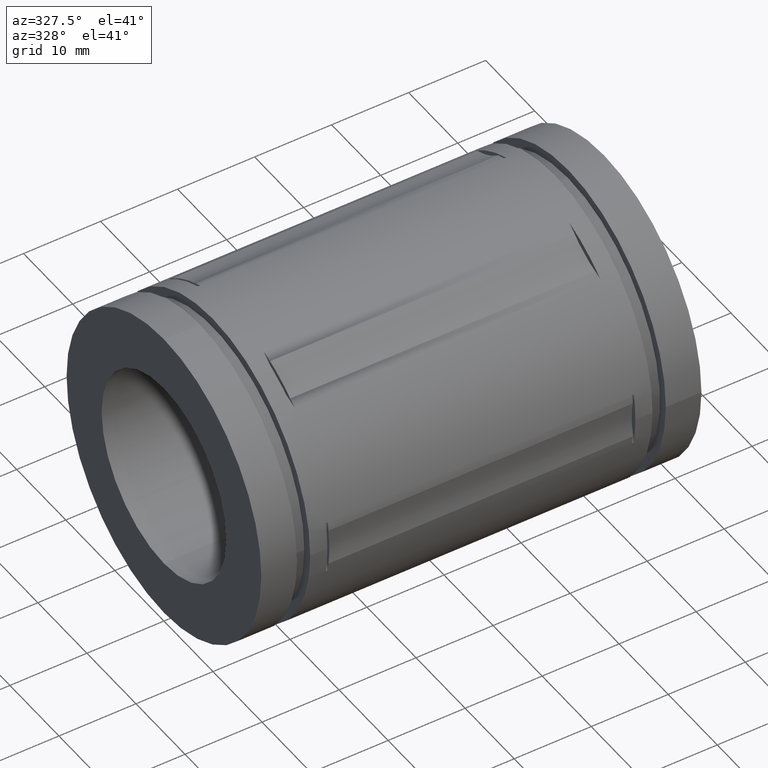
[diagram: clean part render]
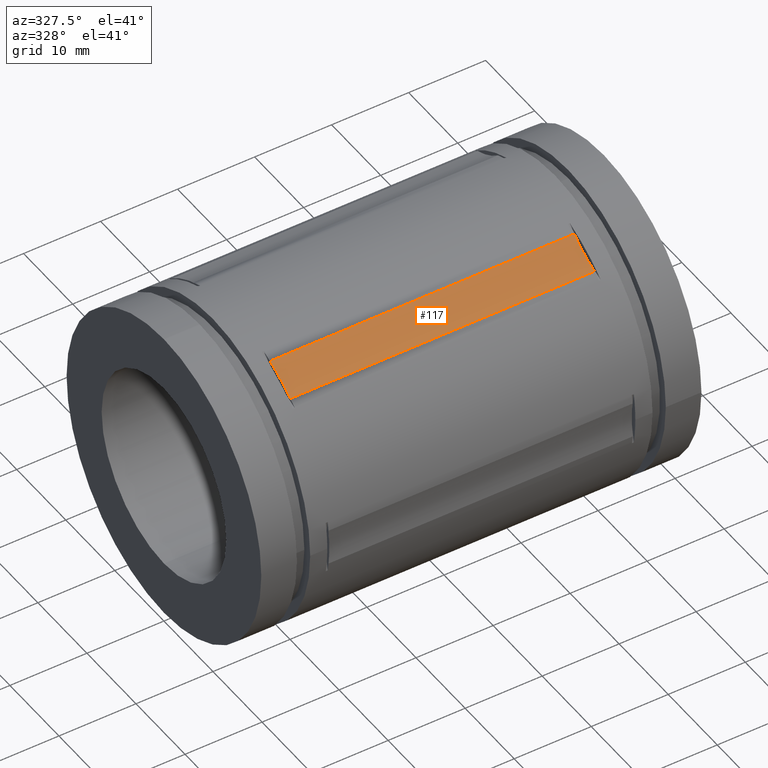
[diagram: same view with one face highlighted and labeled with its STEP entity id]
A machine part, auxiliary view. The second image highlights one B-rep face of the part: STEP entity #117.
In plain terms, the highlighted cylindrical surface (partial cylindrical patch) has radius 11.4938 mm, axis along (-1, -0, -0).
Its self-contained STEP definition (entity closure, byte-faithful):
#87 = EDGE_CURVE ( 'NONE', #461, #1957, #1846, .T. ) ;
#117 = ADVANCED_FACE ( 'NONE', ( #1814 ), #1796, .F. ) ;
#146 = CARTESIAN_POINT ( 'NONE',  ( 0.3476377952755945700, -0.4690857705081334900, 0.6247480311347855000 ) ) ;
#347 = AXIS2_PLACEMENT_3D ( 'NONE', #900, #1981, #1102 ) ;
#398 = ORIENTED_EDGE ( 'NONE', *, *, #87, .F. ) ;
#461 = VERTEX_POINT ( 'NONE', #1567 ) ;
#524 = EDGE_CURVE ( 'NONE', #1957, #668, #1596, .T. ) ;
#604 = CARTESIAN_POINT ( 'NONE',  ( 2.000011811023622200, -0.4690857705081334900, 0.6247480311347852800 ) ) ;
#617 = DIRECTION ( 'NONE',  ( -1.000000000000000000, -1.748382715945128500E-016, -0.0000000000000000000 ) ) ;
#668 = VERTEX_POINT ( 'NONE', #1189 ) ;
#706 = CARTESIAN_POINT ( 'NONE',  ( 1.902362204724409500, -0.6091304749015767900, 1.055044930968090500 ) ) ;
#745 = CIRCLE ( 'NONE', #347, 0.4525129183070911200 ) ;
#841 = DIRECTION ( 'NONE',  ( 0.0000000000000000000, -1.000000000000000000, 0.0000000000000000000 ) ) ;
#862 = DIRECTION ( 'NONE',  ( -1.000000000000000000, -3.018530392330518800E-016, -0.0000000000000000000 ) ) ;
#900 = CARTESIAN_POINT ( 'NONE',  ( 0.3476377952755945700, -0.6091304749015772300, 1.055044930968090500 ) ) ;
#951 = CARTESIAN_POINT ( 'NONE',  ( 2.000011811023622200, -0.3065047806729725400, 0.7186142093812318800 ) ) ;
#954 = DIRECTION ( 'NONE',  ( 1.000000000000000000, 1.748382715945128500E-016, 0.0000000000000000000 ) ) ;
#1032 = EDGE_LOOP ( 'NONE', ( #1830, #398, #1997, #1872 ) ) ;
#1102 = DIRECTION ( 'NONE',  ( 3.018530392330518400E-016, -1.000000000000000000, 9.055591176991554600E-016 ) ) ;
#1189 = CARTESIAN_POINT ( 'NONE',  ( 1.902362204724409500, -0.4690857705081332200, 0.6247480311347855000 ) ) ;
#1219 = EDGE_CURVE ( 'NONE', #668, #1619, #1316, .T. ) ;
#1309 = VECTOR ( 'NONE', #617, 39.37007874015748100 ) ;
#1316 = LINE ( 'NONE', #604, #1309 ) ;
#1430 = DIRECTION ( 'NONE',  ( 0.0000000000000000000, -1.000000000000000000, 0.0000000000000000000 ) ) ;
#1439 = DIRECTION ( 'NONE',  ( -1.000000000000000000, -3.018530392330518800E-016, -0.0000000000000000000 ) ) ;
#1441 = CARTESIAN_POINT ( 'NONE',  ( 1.902362204724409500, -0.6091304749015767900, 1.055044930968090500 ) ) ;
#1567 = CARTESIAN_POINT ( 'NONE',  ( 0.3476377952755945700, -0.3065047806729716600, 0.7186142093812323300 ) ) ;
#1596 = CIRCLE ( 'NONE', #1837, 0.4525129183070910600 ) ;
#1619 = VERTEX_POINT ( 'NONE', #146 ) ;
#1726 = CARTESIAN_POINT ( 'NONE',  ( 1.902362204724409500, -0.3065047806729707100, 0.7186142093812326600 ) ) ;
#1796 = CYLINDRICAL_SURFACE ( 'NONE', #1954, 0.4525129183070910600 ) ;
#1814 = FACE_OUTER_BOUND ( 'NONE', #1032, .T. ) ;
#1830 = ORIENTED_EDGE ( 'NONE', *, *, #524, .F. ) ;
#1837 = AXIS2_PLACEMENT_3D ( 'NONE', #1441, #1439, #1430 ) ;
#1840 = VECTOR ( 'NONE', #954, 39.37007874015748100 ) ;
#1846 = LINE ( 'NONE', #951, #1840 ) ;
#1872 = ORIENTED_EDGE ( 'NONE', *, *, #1219, .F. ) ;
#1943 = EDGE_CURVE ( 'NONE', #1619, #461, #745, .T. ) ;
#1954 = AXIS2_PLACEMENT_3D ( 'NONE', #706, #862, #841 ) ;
#1957 = VERTEX_POINT ( 'NONE', #1726 ) ;
#1981 = DIRECTION ( 'NONE',  ( 1.000000000000000000, 3.018530392330518800E-016, 0.0000000000000000000 ) ) ;
#1997 = ORIENTED_EDGE ( 'NONE', *, *, #1943, .F. ) ;